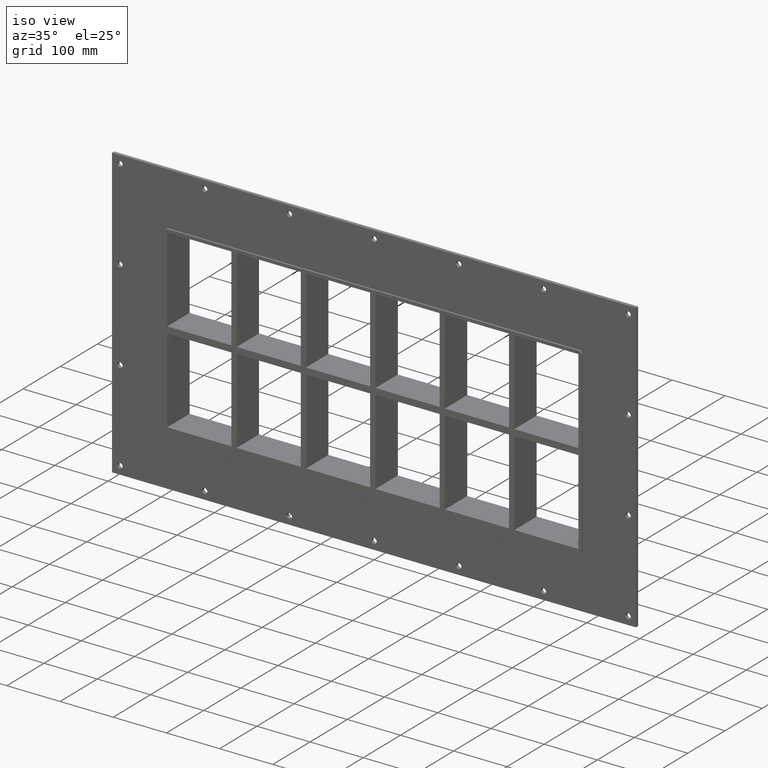
[diagram: clean part render]
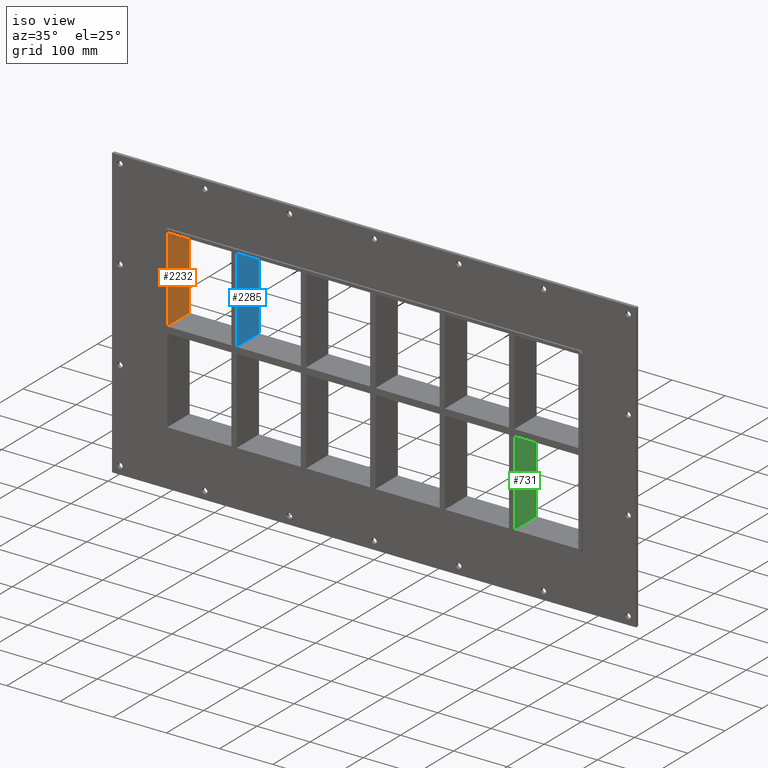
[diagram: same view with three faces highlighted in distinct colors, each labeled with its STEP entity id]
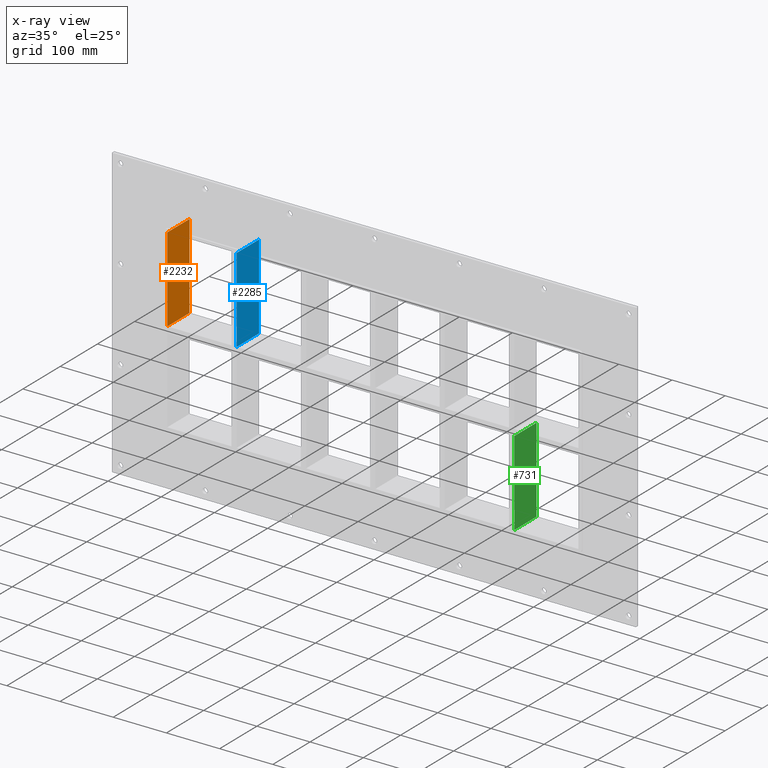
[diagram: x-ray of the same camera — body ghosted, the three highlighted faces saturated]
A machine part, iso view with three faces highlighted in distinct colors.
The next image is the same camera in x-ray (body ghosted, the three faces saturated) — at least one of them is partly hidden behind the body in this view.
Their STEP definitions:

[orange] entity #2232 — the highlighted planar face has unit normal (-1, 0, 0).
#1582=CARTESIAN_POINT('',(-386.49999999999977,-3.0,5.999999999999943));
#1583=VERTEX_POINT('',#1582);
#1584=CARTESIAN_POINT('',(-386.50000000000023,-3.0,165.50000000000006));
#1585=VERTEX_POINT('',#1584);
#1586=CARTESIAN_POINT('',(-386.50000000000023,-3.0,5.999999999999943));
#1587=DIRECTION('',(0.0,0.0,1.0));
#1588=VECTOR('',#1587,159.50000000000009);
#1589=LINE('',#1586,#1588);
#1590=EDGE_CURVE('',#1583,#1585,#1589,.T.);
#1926=CARTESIAN_POINT('',(-386.49999999999977,57.0,5.999999999999943));
#1927=VERTEX_POINT('',#1926);
#1944=CARTESIAN_POINT('',(-386.50000000000023,57.0,165.50000000000006));
#1945=VERTEX_POINT('',#1944);
#1952=CARTESIAN_POINT('',(-386.50000000000023,57.0,165.50000000000003));
#1953=DIRECTION('',(0.0,0.0,-1.0));
#1954=VECTOR('',#1953,159.50000000000009);
#1955=LINE('',#1952,#1954);
#1956=EDGE_CURVE('',#1945,#1927,#1955,.T.);
#2206=CARTESIAN_POINT('',(-386.50000000000023,-3.0,5.999999999999943));
#2207=DIRECTION('',(0.0,1.0,0.0));
#2208=VECTOR('',#2207,60.000000000000007);
#2209=LINE('',#2206,#2208);
#2210=EDGE_CURVE('',#1583,#1927,#2209,.T.);
#2216=CARTESIAN_POINT('',(-386.50000000000023,0.0,-165.49999999999997));
#2217=DIRECTION('',(-1.0,0.0,0.0));
#2218=DIRECTION('',(0.0,0.0,1.0));
#2219=AXIS2_PLACEMENT_3D('',#2216,#2217,#2218);
#2220=PLANE('',#2219);
#2221=ORIENTED_EDGE('',*,*,#2210,.T.);
#2222=ORIENTED_EDGE('',*,*,#1956,.F.);
#2223=CARTESIAN_POINT('',(-386.50000000000023,-3.0,165.50000000000006));
#2224=DIRECTION('',(0.0,1.0,0.0));
#2225=VECTOR('',#2224,60.0);
#2226=LINE('',#2223,#2225);
#2227=EDGE_CURVE('',#1585,#1945,#2226,.T.);
#2228=ORIENTED_EDGE('',*,*,#2227,.F.);
#2229=ORIENTED_EDGE('',*,*,#1590,.F.);
#2230=EDGE_LOOP('',(#2221,#2222,#2228,#2229));
#2231=FACE_OUTER_BOUND('',#2230,.T.);
#2232=ADVANCED_FACE('',(#2231),#2220,.F.);

[blue] entity #2285 — the highlighted planar face has unit normal (1, 0, 0).
#1514=CARTESIAN_POINT('',(-256.00000000000364,-3.0,5.999999999999943));
#1515=VERTEX_POINT('',#1514);
#1522=CARTESIAN_POINT('',(-256.00000000000364,-3.0,165.50000000000006));
#1523=VERTEX_POINT('',#1522);
#1524=CARTESIAN_POINT('',(-256.00000000000364,-3.0,165.50000000000006));
#1525=DIRECTION('',(0.0,0.0,-1.0));
#1526=VECTOR('',#1525,159.50000000000011);
#1527=LINE('',#1524,#1526);
#1528=EDGE_CURVE('',#1523,#1515,#1527,.T.);
#1995=CARTESIAN_POINT('',(-256.00000000000364,57.0,165.50000000000006));
#1996=VERTEX_POINT('',#1995);
#2003=CARTESIAN_POINT('',(-256.00000000000364,57.0,5.999999999999943));
#2004=VERTEX_POINT('',#2003);
#2005=CARTESIAN_POINT('',(-256.00000000000364,57.0,165.50000000000006));
#2006=DIRECTION('',(0.0,0.0,-1.0));
#2007=VECTOR('',#2006,159.50000000000011);
#2008=LINE('',#2005,#2007);
#2009=EDGE_CURVE('',#1996,#2004,#2008,.T.);
#2027=CARTESIAN_POINT('',(-256.00000000000364,-3.0,5.999999999999943));
#2028=DIRECTION('',(0.0,1.0,0.0));
#2029=VECTOR('',#2028,60.0);
#2030=LINE('',#2027,#2029);
#2031=EDGE_CURVE('',#1515,#2004,#2030,.T.);
#2085=CARTESIAN_POINT('',(-256.00000000000364,-3.0,165.50000000000006));
#2086=DIRECTION('',(0.0,1.0,0.0));
#2087=VECTOR('',#2086,60.000000000000007);
#2088=LINE('',#2085,#2087);
#2089=EDGE_CURVE('',#1523,#1996,#2088,.T.);
#2274=CARTESIAN_POINT('',(-256.00000000000364,-3.0,165.50000000000006));
#2275=DIRECTION('',(1.0,0.0,0.0));
#2276=DIRECTION('',(0.0,0.0,-1.0));
#2277=AXIS2_PLACEMENT_3D('',#2274,#2275,#2276);
#2278=PLANE('',#2277);
#2279=ORIENTED_EDGE('',*,*,#2031,.T.);
#2280=ORIENTED_EDGE('',*,*,#2009,.F.);
#2281=ORIENTED_EDGE('',*,*,#2089,.F.);
#2282=ORIENTED_EDGE('',*,*,#1528,.T.);
#2283=EDGE_LOOP('',(#2279,#2280,#2281,#2282));
#2284=FACE_OUTER_BOUND('',#2283,.T.);
#2285=ADVANCED_FACE('',(#2284),#2278,.T.);

[green] entity #731 — the highlighted planar face has unit normal (1, 0, 0).
#692=CARTESIAN_POINT('',(265.99999999999642,-3.0,165.50000000000006));
#693=DIRECTION('',(1.0,0.0,0.0));
#694=DIRECTION('',(0.0,0.0,-1.0));
#695=AXIS2_PLACEMENT_3D('',#692,#693,#694);
#696=PLANE('',#695);
#697=CARTESIAN_POINT('',(265.99999999999642,-3.0,-6.000000000009358));
#698=VERTEX_POINT('',#697);
#699=CARTESIAN_POINT('',(265.99999999999642,57.0,-6.000000000009358));
#700=VERTEX_POINT('',#699);
#701=CARTESIAN_POINT('',(265.99999999999636,-3.0,-6.000000000009358));
#702=DIRECTION('',(0.0,1.0,0.0));
#703=VECTOR('',#702,60.0);
#704=LINE('',#701,#703);
#705=EDGE_CURVE('',#698,#700,#704,.T.);
#706=ORIENTED_EDGE('',*,*,#705,.F.);
#707=CARTESIAN_POINT('',(265.99999999999642,-3.0,-165.49999999998423));
#708=VERTEX_POINT('',#707);
#709=CARTESIAN_POINT('',(265.99999999999642,-3.0,-6.000000000009351));
#710=DIRECTION('',(0.0,0.0,-1.0));
#711=VECTOR('',#710,159.4999999999749);
#712=LINE('',#709,#711);
#713=EDGE_CURVE('',#698,#708,#712,.T.);
#714=ORIENTED_EDGE('',*,*,#713,.T.);
#715=CARTESIAN_POINT('',(265.99999999999642,57.0,-165.49999999998425));
#716=VERTEX_POINT('',#715);
#717=CARTESIAN_POINT('',(265.99999999999636,57.000000000000007,-165.49999999999997));
#718=DIRECTION('',(0.0,-1.0,0.0));
#719=VECTOR('',#718,60.000000000000007);
#720=LINE('',#717,#719);
#721=EDGE_CURVE('',#716,#708,#720,.T.);
#722=ORIENTED_EDGE('',*,*,#721,.F.);
#723=CARTESIAN_POINT('',(265.99999999999642,57.0,-6.000000000009351));
#724=DIRECTION('',(0.0,0.0,-1.0));
#725=VECTOR('',#724,159.4999999999749);
#726=LINE('',#723,#725);
#727=EDGE_CURVE('',#700,#716,#726,.T.);
#728=ORIENTED_EDGE('',*,*,#727,.F.);
#729=EDGE_LOOP('',(#706,#714,#722,#728));
#730=FACE_OUTER_BOUND('',#729,.T.);
#731=ADVANCED_FACE('',(#730),#696,.T.);